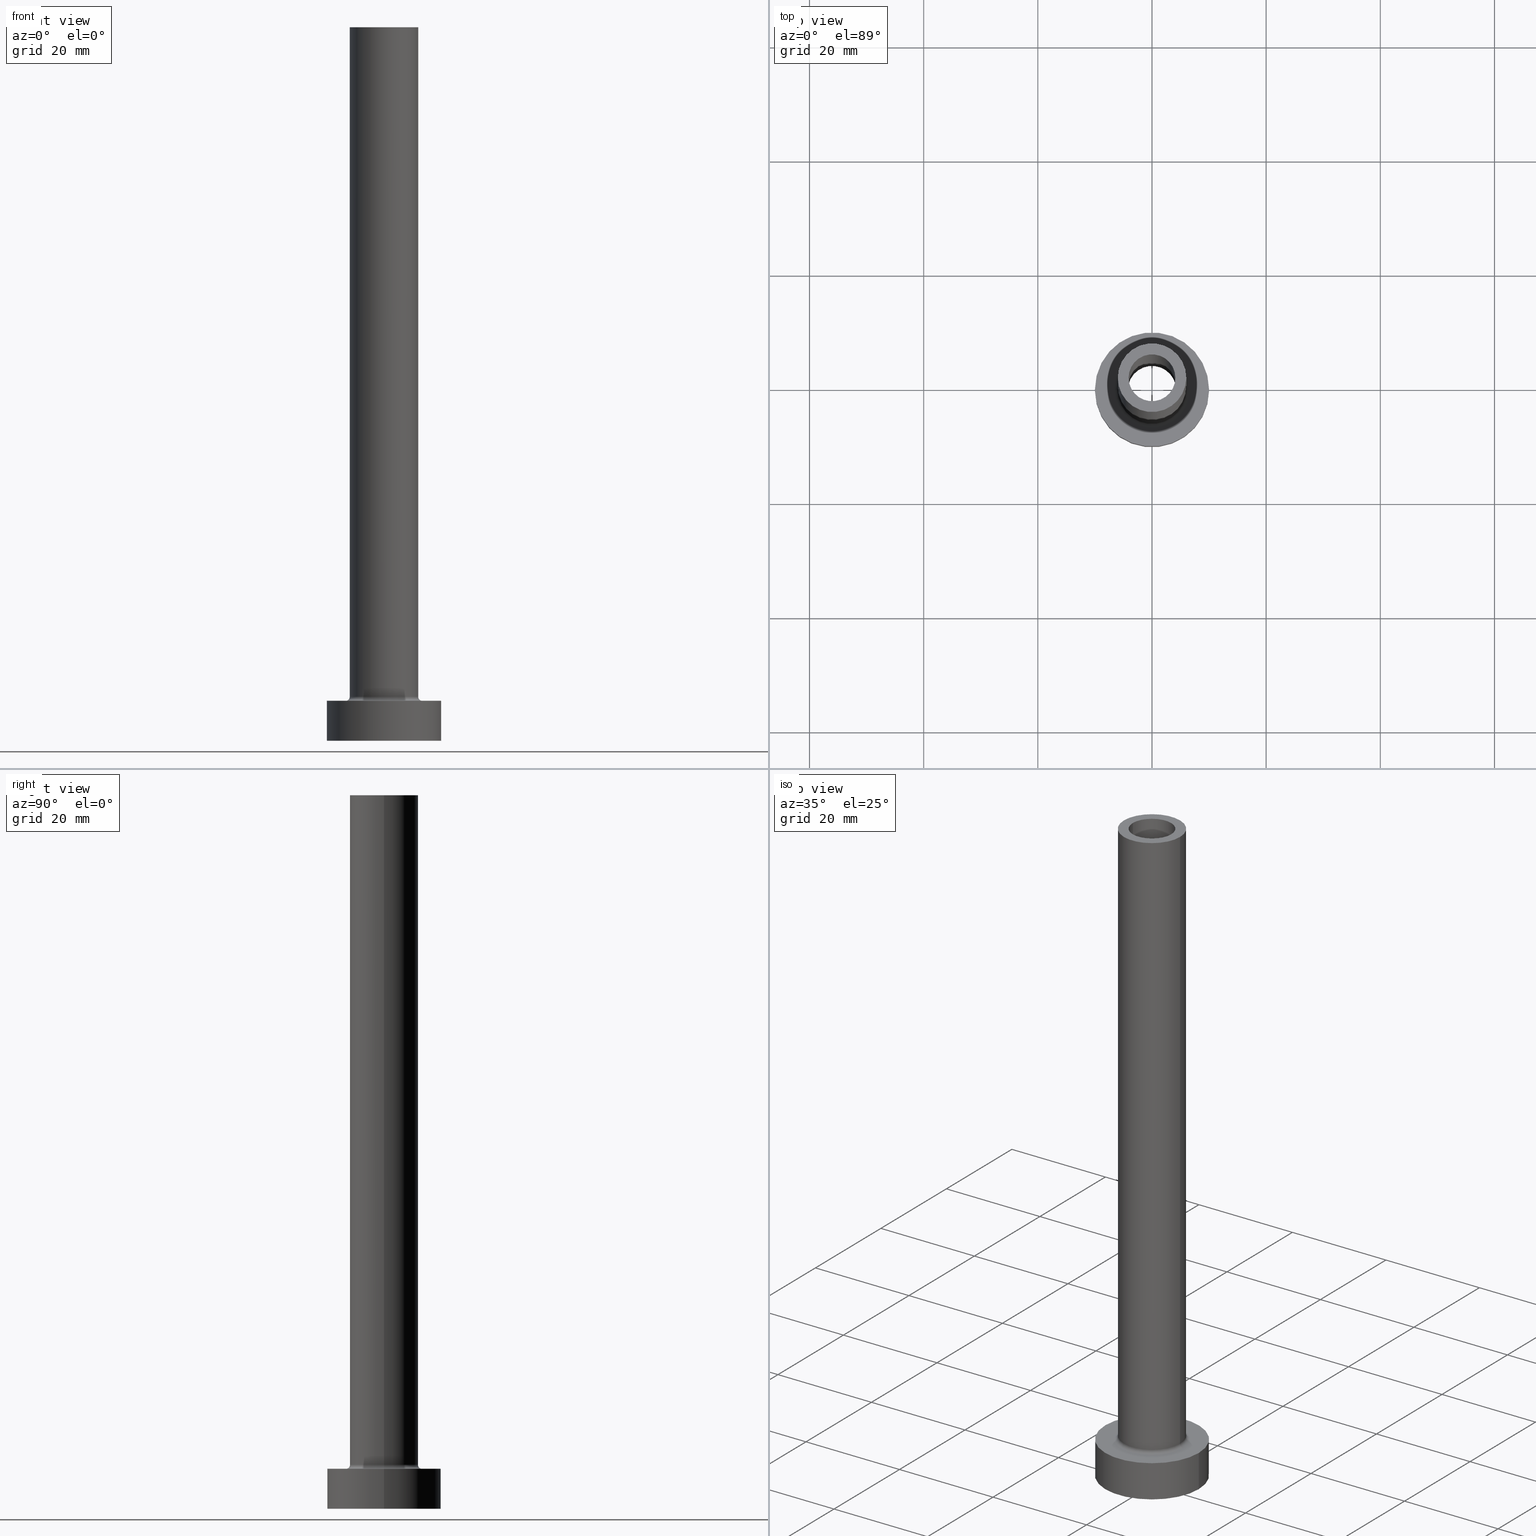
[diagram: canonical four-view strip — front | top / right | iso, engineering-drawing reading convention]
A machine part, canonical four-view strip (front | top / right | iso — engineering-drawing reading convention). The complete STEP part file that produces these views, byte-faithful:
ISO-10303-21;
HEADER;
FILE_DESCRIPTION (( 'STEP AP203' ),
    '1' );
FILE_NAME ('059e.STEP',
    '2023-02-13T07:46:19',
    ( '' ),
    ( '' ),
    'SwSTEP 2.0',
    'SolidWorks 2019',
    '' );
FILE_SCHEMA (( 'CONFIG_CONTROL_DESIGN' ));
ENDSEC;

DATA;
#1 = ORGANIZATION ( 'NEUR�EN�', 'NEUR�EN�', '' ) ;
#2 = EDGE_LOOP ( 'NONE', ( #382, #442, #266, #193 ) ) ;
#3 = DIRECTION ( 'NONE',  ( 0.000000000000000000, 0.000000000000000000, 1.000000000000000000 ) ) ;
#4 = DIRECTION ( 'NONE',  ( 1.000000000000000000, 0.000000000000000000, 0.000000000000000000 ) ) ;
#5 = DIRECTION ( 'NONE',  ( 1.000000000000000000, 0.000000000000000000, 0.000000000000000000 ) ) ;
#6 = DIRECTION ( 'NONE',  ( -1.000000000000000000, 0.000000000000000000, 0.000000000000000000 ) ) ;
#7 = CC_DESIGN_DATE_AND_TIME_ASSIGNMENT ( #313, #454, ( #122 ) ) ;
#8 = CIRCLE ( 'NONE', #142, 4.099999999999999645 ) ;
#9 = FACE_OUTER_BOUND ( 'NONE', #2, .T. ) ;
#10 = CARTESIAN_POINT ( 'NONE',  ( -10.00000000000000000, 0.000000000000000000, 7.000000000000000000 ) ) ;
#11 = EDGE_CURVE ( 'NONE', #228, #368, #233, .T. ) ;
#12 = DIRECTION ( 'NONE',  ( 1.000000000000000000, 0.000000000000000000, 0.000000000000000000 ) ) ;
#13 = EDGE_LOOP ( 'NONE', ( #403, #376, #415, #147 ) ) ;
#14 = DIRECTION ( 'NONE',  ( 1.000000000000000000, 0.000000000000000000, 0.000000000000000000 ) ) ;
#15 = CIRCLE ( 'NONE', #258, 6.000000000000000888 ) ;
#16 = EDGE_LOOP ( 'NONE', ( #373, #58, #302, #124 ) ) ;
#17 =( LENGTH_UNIT ( ) NAMED_UNIT ( * ) SI_UNIT ( .MILLI., .METRE. ) );
#18 = ORIENTED_EDGE ( 'NONE', *, *, #55, .F. ) ;
#19 = ADVANCED_FACE ( 'NONE', ( #378 ), #136, .T. ) ;
#20 = FACE_BOUND ( 'NONE', #334, .T. ) ;
#21 = EDGE_LOOP ( 'NONE', ( #102, #209 ) ) ;
#22 = PRODUCT_DEFINITION_FORMATION_WITH_SPECIFIED_SOURCE ( 'LIBOVOLN�', '', #259, .NOT_KNOWN. ) ;
#23 = ORIENTED_EDGE ( 'NONE', *, *, #381, .F. ) ;
#24 = CIRCLE ( 'NONE', #288, 6.700000000000001066 ) ;
#25 = APPROVAL_DATE_TIME ( #383, #43 ) ;
#26 = EDGE_CURVE ( 'NONE', #51, #365, #15, .T. ) ;
#27 = CARTESIAN_POINT ( 'NONE',  ( -4.099999999999999645, 0.000000000000000000, 80.00000000000000000 ) ) ;
#28 = MANIFOLD_SOLID_BREP ( 'Odebrat vysunut�m4', #99 ) ;
#29 = APPROVAL_ROLE ( '' ) ;
#30 = VERTEX_POINT ( 'NONE', #312 ) ;
#31 = COORDINATED_UNIVERSAL_TIME_OFFSET ( 1, 0, .AHEAD. ) ;
#32 = CC_DESIGN_APPROVAL ( #43, ( #22 ) ) ;
#33 = CARTESIAN_POINT ( 'NONE',  ( -4.099999999999999645, 0.000000000000000000, 125.0000000000000000 ) ) ;
#34 = CALENDAR_DATE ( 2023, 13, 2 ) ;
#35 = DIRECTION ( 'NONE',  ( 1.000000000000000000, 0.000000000000000000, 0.000000000000000000 ) ) ;
#36 = COORDINATED_UNIVERSAL_TIME_OFFSET ( 1, 0, .AHEAD. ) ;
#37 = ORIENTED_EDGE ( 'NONE', *, *, #26, .F. ) ;
#38 = SECURITY_CLASSIFICATION ( '', '', #62 ) ;
#39 = DIRECTION ( 'NONE',  ( -0.000000000000000000, -0.000000000000000000, -1.000000000000000000 ) ) ;
#40 = DIRECTION ( 'NONE',  ( -1.000000000000000000, 1.224646799147353454E-16, 0.000000000000000000 ) ) ;
#41 = AXIS2_PLACEMENT_3D ( 'NONE', #281, #67, #314 ) ;
#42 = DIRECTION ( 'NONE',  ( 0.000000000000000000, 0.000000000000000000, 1.000000000000000000 ) ) ;
#43 = APPROVAL ( #139, 'NEUR�EN�' ) ;
#44 = CARTESIAN_POINT ( 'NONE',  ( -6.700000000000001066, 8.205133554287267548E-16, 7.699999999999998401 ) ) ;
#45 = DIRECTION ( 'NONE',  ( 0.000000000000000000, 0.000000000000000000, 1.000000000000000000 ) ) ;
#46 = FACE_OUTER_BOUND ( 'NONE', #247, .T. ) ;
#47 = CC_DESIGN_PERSON_AND_ORGANIZATION_ASSIGNMENT ( #419, #351, ( #22 ) ) ;
#48 = LINE ( 'NONE', #223, #363 ) ;
#49 = VERTEX_POINT ( 'NONE', #284 ) ;
#50 = APPROVAL_STATUS ( 'not_yet_approved' ) ;
#51 = VERTEX_POINT ( 'NONE', #61 ) ;
#52 = VECTOR ( 'NONE', #370, 1000.000000000000000 ) ;
#53 =( NAMED_UNIT ( * ) PLANE_ANGLE_UNIT ( ) SI_UNIT ( $, .RADIAN. ) );
#54 = CIRCLE ( 'NONE', #432, 4.099999999999999645 ) ;
#55 = EDGE_CURVE ( 'NONE', #461, #30, #328, .T. ) ;
#56 = VERTEX_POINT ( 'NONE', #27 ) ;
#57 = FACE_OUTER_BOUND ( 'NONE', #236, .T. ) ;
#58 = ORIENTED_EDGE ( 'NONE', *, *, #129, .T. ) ;
#59 = ORIENTED_EDGE ( 'NONE', *, *, #227, .F. ) ;
#60 = EDGE_CURVE ( 'NONE', #245, #86, #54, .T. ) ;
#61 = CARTESIAN_POINT ( 'NONE',  ( 6.000000000000000888, 7.347880794884120722E-16, 125.0000000000000000 ) ) ;
#62 = SECURITY_CLASSIFICATION_LEVEL ( 'unclassified' ) ;
#63 = DIRECTION ( 'NONE',  ( -1.000000000000000000, 0.000000000000000000, 0.000000000000000000 ) ) ;
#64 = APPROVAL_ROLE ( '' ) ;
#65 = VERTEX_POINT ( 'NONE', #349 ) ;
#66 = AXIS2_PLACEMENT_3D ( 'NONE', #117, #262, #226 ) ;
#67 = DIRECTION ( 'NONE',  ( 0.000000000000000000, 0.000000000000000000, 1.000000000000000000 ) ) ;
#68 = DIRECTION ( 'NONE',  ( -0.000000000000000000, -0.000000000000000000, -1.000000000000000000 ) ) ;
#69 = UNCERTAINTY_MEASURE_WITH_UNIT (LENGTH_MEASURE( 1.000000000000000082E-05 ), #17, 'distance_accuracy_value', 'NONE');
#70 = CARTESIAN_POINT ( 'NONE',  ( 0.000000000000000000, 0.000000000000000000, 80.00000000000000000 ) ) ;
#71 = DIRECTION ( 'NONE',  ( 0.000000000000000000, 0.000000000000000000, 1.000000000000000000 ) ) ;
#72 = CC_DESIGN_PERSON_AND_ORGANIZATION_ASSIGNMENT ( #439, #264, ( #259 ) ) ;
#73 = AXIS2_PLACEMENT_3D ( 'NONE', #123, #85, #267 ) ;
#74 = DIRECTION ( 'NONE',  ( -1.000000000000000000, 0.000000000000000000, 0.000000000000000000 ) ) ;
#75 = CARTESIAN_POINT ( 'NONE',  ( 0.000000000000000000, 0.000000000000000000, 0.000000000000000000 ) ) ;
#76 = LINE ( 'NONE', #289, #152 ) ;
#77 = FACE_OUTER_BOUND ( 'NONE', #92, .T. ) ;
#78 = CC_DESIGN_DATE_AND_TIME_ASSIGNMENT ( #170, #311, ( #38 ) ) ;
#79 = DIRECTION ( 'NONE',  ( 1.000000000000000000, 0.000000000000000000, 0.000000000000000000 ) ) ;
#80 = LOCAL_TIME ( 8, 46, 19.00000000000000000, #31 ) ;
#81 = CARTESIAN_POINT ( 'NONE',  ( 0.000000000000000000, 0.000000000000000000, 80.00000000000000000 ) ) ;
#82 = VECTOR ( 'NONE', #140, 1000.000000000000000 ) ;
#83 = AXIS2_PLACEMENT_3D ( 'NONE', #345, #178, #413 ) ;
#84 = ORIENTED_EDGE ( 'NONE', *, *, #60, .T. ) ;
#85 = DIRECTION ( 'NONE',  ( 0.000000000000000000, 0.000000000000000000, 1.000000000000000000 ) ) ;
#86 = VERTEX_POINT ( 'NONE', #33 ) ;
#87 = CARTESIAN_POINT ( 'NONE',  ( -6.700000000000001066, 8.205133554287267548E-16, 6.999999999999999112 ) ) ;
#88 = EDGE_CURVE ( 'NONE', #49, #461, #355, .T. ) ;
#89 = ORIENTED_EDGE ( 'NONE', *, *, #11, .T. ) ;
#90 = CIRCLE ( 'NONE', #66, 0.7000000000000000666 ) ;
#91 = FACE_OUTER_BOUND ( 'NONE', #21, .T. ) ;
#92 = EDGE_LOOP ( 'NONE', ( #407, #230, #418, #239 ) ) ;
#93 = CARTESIAN_POINT ( 'NONE',  ( 0.000000000000000000, 0.000000000000000000, 0.000000000000000000 ) ) ;
#94 = ORIENTED_EDGE ( 'NONE', *, *, #431, .F. ) ;
#95 = EDGE_CURVE ( 'NONE', #398, #405, #320, .T. ) ;
#96 = PLANE ( 'NONE',  #105 ) ;
#97 = DIRECTION ( 'NONE',  ( 1.000000000000000000, 0.000000000000000000, 0.000000000000000000 ) ) ;
#98 = CIRCLE ( 'NONE', #438, 10.00000000000000000 ) ;
#99 = CLOSED_SHELL ( 'NONE', ( #387, #186, #356, #243, #213, #19, #144, #396, #138, #460, #316, #367, #208, #110 ) ) ;
#100 = VERTEX_POINT ( 'NONE', #251 ) ;
#101 = APPROVAL_STATUS ( 'not_yet_approved' ) ;
#102 = ORIENTED_EDGE ( 'NONE', *, *, #401, .T. ) ;
#103 = EDGE_CURVE ( 'NONE', #100, #56, #119, .T. ) ;
#104 = ORIENTED_EDGE ( 'NONE', *, *, #95, .T. ) ;
#105 = AXIS2_PLACEMENT_3D ( 'NONE', #375, #198, #156 ) ;
#106 = CARTESIAN_POINT ( 'NONE',  ( 10.00000000000000000, 1.224646799147353256E-15, 7.000000000000000000 ) ) ;
#107 = AXIS2_PLACEMENT_3D ( 'NONE', #116, #181, #6 ) ;
#108 = SHAPE_DEFINITION_REPRESENTATION ( #190, #248 ) ;
#109 = CYLINDRICAL_SURFACE ( 'NONE', #352, 4.250000000000000000 ) ;
#110 = ADVANCED_FACE ( 'NONE', ( #421 ), #411, .F. ) ;
#111 = FACE_BOUND ( 'NONE', #162, .T. ) ;
#112 = DIRECTION ( 'NONE',  ( -1.000000000000000000, 0.000000000000000000, 0.000000000000000000 ) ) ;
#113 = AXIS2_PLACEMENT_3D ( 'NONE', #297, #325, #12 ) ;
#114 = DIRECTION ( 'NONE',  ( 0.000000000000000000, 0.000000000000000000, 1.000000000000000000 ) ) ;
#115 = CYLINDRICAL_SURFACE ( 'NONE', #107, 6.000000000000000888 ) ;
#116 = CARTESIAN_POINT ( 'NONE',  ( 0.000000000000000000, 0.000000000000000000, 125.0000000000000000 ) ) ;
#117 = CARTESIAN_POINT ( 'NONE',  ( 6.700000000000001066, 0.000000000000000000, 7.699999999999998401 ) ) ;
#118 = DIRECTION ( 'NONE',  ( 1.000000000000000000, 0.000000000000000000, 0.000000000000000000 ) ) ;
#119 = CIRCLE ( 'NONE', #301, 4.099999999999999645 ) ;
#120 =( NAMED_UNIT ( * ) SI_UNIT ( $, .STERADIAN. ) SOLID_ANGLE_UNIT ( ) );
#121 = ORIENTED_EDGE ( 'NONE', *, *, #422, .F. ) ;
#122 = PRODUCT_DEFINITION ( 'NEZN�M�', '', #22, #423 ) ;
#123 = CARTESIAN_POINT ( 'NONE',  ( 0.000000000000000000, 0.000000000000000000, 0.000000000000000000 ) ) ;
#124 = ORIENTED_EDGE ( 'NONE', *, *, #436, .F. ) ;
#125 = ORIENTED_EDGE ( 'NONE', *, *, #173, .T. ) ;
#126 = AXIS2_PLACEMENT_3D ( 'NONE', #399, #329, #112 ) ;
#127 = CARTESIAN_POINT ( 'NONE',  ( -4.250000000000000000, 0.000000000000000000, 0.000000000000000000 ) ) ;
#128 = CIRCLE ( 'NONE', #424, 4.250000000000000000 ) ;
#129 = EDGE_CURVE ( 'NONE', #228, #459, #386, .T. ) ;
#130 = ORIENTED_EDGE ( 'NONE', *, *, #157, .T. ) ;
#131 = EDGE_LOOP ( 'NONE', ( #37, #165, #196, #121 ) ) ;
#132 = CALENDAR_DATE ( 2023, 13, 2 ) ;
#133 = ORIENTED_EDGE ( 'NONE', *, *, #129, .F. ) ;
#134 = CARTESIAN_POINT ( 'NONE',  ( 0.000000000000000000, 0.000000000000000000, 125.0000000000000000 ) ) ;
#135 = PERSON_AND_ORGANIZATION ( #163, #1 ) ;
#136 = CYLINDRICAL_SURFACE ( 'NONE', #159, 10.00000000000000000 ) ;
#137 = CIRCLE ( 'NONE', #199, 4.250000000000000000 ) ;
#138 = ADVANCED_FACE ( 'NONE', ( #214 ), #318, .T. ) ;
#139 = APPROVAL_STATUS ( 'not_yet_approved' ) ;
#140 = DIRECTION ( 'NONE',  ( 0.000000000000000000, 0.000000000000000000, -1.000000000000000000 ) ) ;
#141 = DIRECTION ( 'NONE',  ( 1.000000000000000000, 0.000000000000000000, 0.000000000000000000 ) ) ;
#142 = AXIS2_PLACEMENT_3D ( 'NONE', #81, #392, #79 ) ;
#143 = CARTESIAN_POINT ( 'NONE',  ( 0.000000000000000000, 0.000000000000000000, 7.000000000000000000 ) ) ;
#144 = ADVANCED_FACE ( 'NONE', ( #111, #321 ), #219, .T. ) ;
#145 = AXIS2_PLACEMENT_3D ( 'NONE', #277, #385, #35 ) ;
#146 = DIRECTION ( 'NONE',  ( 0.000000000000000000, 0.000000000000000000, -1.000000000000000000 ) ) ;
#147 = ORIENTED_EDGE ( 'NONE', *, *, #296, .T. ) ;
#148 = CARTESIAN_POINT ( 'NONE',  ( 0.000000000000000000, 0.000000000000000000, 125.0000000000000000 ) ) ;
#149 = DIRECTION ( 'NONE',  ( -0.000000000000000000, -0.000000000000000000, -1.000000000000000000 ) ) ;
#150 = CC_DESIGN_SECURITY_CLASSIFICATION ( #38, ( #22 ) ) ;
#151 = CARTESIAN_POINT ( 'NONE',  ( -6.000000000000000888, 0.000000000000000000, 125.0000000000000000 ) ) ;
#152 = VECTOR ( 'NONE', #146, 1000.000000000000000 ) ;
#153 = APPROVAL ( #50, 'NEUR�EN�' ) ;
#154 = FACE_OUTER_BOUND ( 'NONE', #131, .T. ) ;
#155 = DIRECTION ( 'NONE',  ( 0.000000000000000000, 0.000000000000000000, 1.000000000000000000 ) ) ;
#156 = DIRECTION ( 'NONE',  ( 1.000000000000000000, 0.000000000000000000, -0.000000000000000000 ) ) ;
#157 = EDGE_CURVE ( 'NONE', #245, #100, #76, .T. ) ;
#158 = ORIENTED_EDGE ( 'NONE', *, *, #88, .F. ) ;
#159 = AXIS2_PLACEMENT_3D ( 'NONE', #274, #353, #63 ) ;
#160 = LINE ( 'NONE', #201, #52 ) ;
#161 = VERTEX_POINT ( 'NONE', #180 ) ;
#162 = EDGE_LOOP ( 'NONE', ( #232, #104 ) ) ;
#163 = PERSON ( 'NEUR�EN�', 'NEUR�EN�', 'NEUR�EN�', ('NEUR�EN�'), ('NEUR�EN�'), ('NEUR�EN�') ) ;
#164 = CC_DESIGN_PERSON_AND_ORGANIZATION_ASSIGNMENT ( #135, #348, ( #22 ) ) ;
#165 = ORIENTED_EDGE ( 'NONE', *, *, #235, .T. ) ;
#166 = LOCAL_TIME ( 8, 46, 19.00000000000000000, #451 ) ;
#167 = APPLICATION_PROTOCOL_DEFINITION ( 'international standard', 'config_control_design', 1994, #416 ) ;
#168 = ORIENTED_EDGE ( 'NONE', *, *, #431, .T. ) ;
#169 = ORIENTED_EDGE ( 'NONE', *, *, #350, .T. ) ;
#170 = DATE_AND_TIME ( #132, #285 ) ;
#171 = CARTESIAN_POINT ( 'NONE',  ( -4.250000000000000000, 0.000000000000000000, 92.02081528017131973 ) ) ;
#172 = ORIENTED_EDGE ( 'NONE', *, *, #192, .T. ) ;
#173 = EDGE_CURVE ( 'NONE', #49, #300, #128, .T. ) ;
#174 = CALENDAR_DATE ( 2023, 13, 2 ) ;
#175 = VERTEX_POINT ( 'NONE', #253 ) ;
#176 = CARTESIAN_POINT ( 'NONE',  ( 0.000000000000000000, 0.000000000000000000, 80.00000000000000000 ) ) ;
#177 = DATE_AND_TIME ( #282, #80 ) ;
#178 = DIRECTION ( 'NONE',  ( 0.000000000000000000, 0.000000000000000000, -1.000000000000000000 ) ) ;
#179 = CIRCLE ( 'NONE', #278, 10.00000000000000000 ) ;
#180 = CARTESIAN_POINT ( 'NONE',  ( 6.000000000000000888, 7.347880794884120722E-16, 7.699999999999998401 ) ) ;
#181 = DIRECTION ( 'NONE',  ( -0.000000000000000000, -0.000000000000000000, -1.000000000000000000 ) ) ;
#182 = AXIS2_PLACEMENT_3D ( 'NONE', #44, #330, #40 ) ;
#183 = CARTESIAN_POINT ( 'NONE',  ( 0.000000000000000000, 0.000000000000000000, 7.000000000000000000 ) ) ;
#184 = FACE_OUTER_BOUND ( 'NONE', #197, .T. ) ;
#185 = DIRECTION ( 'NONE',  ( 1.000000000000000000, 0.000000000000000000, 0.000000000000000000 ) ) ;
#186 = ADVANCED_FACE ( 'NONE', ( #425 ), #109, .F. ) ;
#187 = VECTOR ( 'NONE', #406, 1000.000000000000000 ) ;
#188 = CYLINDRICAL_SURFACE ( 'NONE', #126, 4.250000000000000000 ) ;
#189 = AXIS2_PLACEMENT_3D ( 'NONE', #428, #114, #257 ) ;
#190 = PRODUCT_DEFINITION_SHAPE ( 'NONE', 'NONE',  #122 ) ;
#191 = DIRECTION ( 'NONE',  ( -0.000000000000000000, -0.000000000000000000, -1.000000000000000000 ) ) ;
#192 = EDGE_CURVE ( 'NONE', #300, #49, #137, .T. ) ;
#193 = ORIENTED_EDGE ( 'NONE', *, *, #374, .F. ) ;
#194 = CARTESIAN_POINT ( 'NONE',  ( 0.000000000000000000, 0.000000000000000000, 125.0000000000000000 ) ) ;
#195 = AXIS2_PLACEMENT_3D ( 'NONE', #291, #45, #185 ) ;
#196 = ORIENTED_EDGE ( 'NONE', *, *, #292, .T. ) ;
#197 = EDGE_LOOP ( 'NONE', ( #280, #130, #310, #238 ) ) ;
#198 = DIRECTION ( 'NONE',  ( 0.000000000000000000, 0.000000000000000000, 1.000000000000000000 ) ) ;
#199 = AXIS2_PLACEMENT_3D ( 'NONE', #70, #42, #5 ) ;
#200 = ORIENTED_EDGE ( 'NONE', *, *, #60, .F. ) ;
#201 = CARTESIAN_POINT ( 'NONE',  ( -4.099999999999999645, 0.000000000000000000, 125.0000000000000000 ) ) ;
#202 = ORIENTED_EDGE ( 'NONE', *, *, #157, .F. ) ;
#203 = DIRECTION ( 'NONE',  ( 1.000000000000000000, 0.000000000000000000, 0.000000000000000000 ) ) ;
#204 = ORIENTED_EDGE ( 'NONE', *, *, #256, .T. ) ;
#205 = CARTESIAN_POINT ( 'NONE',  ( 0.000000000000000000, 0.000000000000000000, 125.0000000000000000 ) ) ;
#206 = DIRECTION ( 'NONE',  ( 1.000000000000000000, 0.000000000000000000, 0.000000000000000000 ) ) ;
#207 = PERSON_AND_ORGANIZATION ( #163, #1 ) ;
#208 = ADVANCED_FACE ( 'NONE', ( #252, #216 ), #357, .F. ) ;
#209 = ORIENTED_EDGE ( 'NONE', *, *, #26, .T. ) ;
#210 = DATE_AND_TIME ( #174, #166 ) ;
#211 = DIRECTION ( 'NONE',  ( 1.000000000000000000, 0.000000000000000000, 0.000000000000000000 ) ) ;
#212 = EDGE_LOOP ( 'NONE', ( #133, #94, #336, #272 ) ) ;
#213 = ADVANCED_FACE ( 'NONE', ( #394 ), #221, .T. ) ;
#214 = FACE_OUTER_BOUND ( 'NONE', #13, .T. ) ;
#215 = PERSON_AND_ORGANIZATION_ROLE ( 'creator' ) ;
#216 = FACE_OUTER_BOUND ( 'NONE', #265, .T. ) ;
#217 = CARTESIAN_POINT ( 'NONE',  ( 10.00000000000000000, 1.224646799147353256E-15, 7.000000000000000000 ) ) ;
#218 = CIRCLE ( 'NONE', #319, 6.000000000000000888 ) ;
#219 = PLANE ( 'NONE',  #433 ) ;
#220 = DIRECTION ( 'NONE',  ( -0.000000000000000000, -0.000000000000000000, -1.000000000000000000 ) ) ;
#221 = CYLINDRICAL_SURFACE ( 'NONE', #307, 10.00000000000000000 ) ;
#222 = EDGE_CURVE ( 'NONE', #175, #398, #449, .T. ) ;
#223 = CARTESIAN_POINT ( 'NONE',  ( 4.250000000000000000, 5.204748896376250699E-16, 92.02081528017131973 ) ) ;
#224 = DIRECTION ( 'NONE',  ( 0.000000000000000000, 0.000000000000000000, 1.000000000000000000 ) ) ;
#225 = AXIS2_PLACEMENT_3D ( 'NONE', #194, #332, #299 ) ;
#226 = DIRECTION ( 'NONE',  ( 0.000000000000000000, 0.000000000000000000, -1.000000000000000000 ) ) ;
#227 = EDGE_CURVE ( 'NONE', #459, #65, #457, .T. ) ;
#228 = VERTEX_POINT ( 'NONE', #217 ) ;
#229 = PLANE ( 'NONE',  #73 ) ;
#230 = ORIENTED_EDGE ( 'NONE', *, *, #292, .F. ) ;
#231 = CARTESIAN_POINT ( 'NONE',  ( 10.00000000000000000, 1.224646799147353256E-15, 0.000000000000000000 ) ) ;
#232 = ORIENTED_EDGE ( 'NONE', *, *, #275, .T. ) ;
#233 = CIRCLE ( 'NONE', #41, 10.00000000000000000 ) ;
#234 = AXIS2_PLACEMENT_3D ( 'NONE', #261, #298, #4 ) ;
#235 = EDGE_CURVE ( 'NONE', #51, #161, #294, .T. ) ;
#236 = EDGE_LOOP ( 'NONE', ( #304, #59 ) ) ;
#237 = DIRECTION ( 'NONE',  ( -0.000000000000000000, -0.000000000000000000, -1.000000000000000000 ) ) ;
#238 = ORIENTED_EDGE ( 'NONE', *, *, #453, .F. ) ;
#239 = ORIENTED_EDGE ( 'NONE', *, *, #95, .F. ) ;
#240 = CARTESIAN_POINT ( 'NONE',  ( 6.700000000000001066, 0.000000000000000000, 6.999999999999999112 ) ) ;
#241 = EDGE_LOOP ( 'NONE', ( #168, #89 ) ) ;
#242 = LOCAL_TIME ( 8, 46, 19.00000000000000000, #36 ) ;
#243 = ADVANCED_FACE ( 'NONE', ( #154 ), #115, .T. ) ;
#244 = DIRECTION ( 'NONE',  ( 0.000000000000000000, 0.000000000000000000, 1.000000000000000000 ) ) ;
#245 = VERTEX_POINT ( 'NONE', #358 ) ;
#246 = APPROVAL_ROLE ( '' ) ;
#247 = EDGE_LOOP ( 'NONE', ( #409, #172, #445, #400 ) ) ;
#248 = ADVANCED_BREP_SHAPE_REPRESENTATION ( '059e', ( #28, #369 ), #391 ) ;
#249 = AXIS2_PLACEMENT_3D ( 'NONE', #260, #155, #118 ) ;
#250 = VECTOR ( 'NONE', #437, 1000.000000000000000 ) ;
#251 = CARTESIAN_POINT ( 'NONE',  ( 4.099999999999999645, 5.021051876504146399E-16, 80.00000000000000000 ) ) ;
#252 = FACE_BOUND ( 'NONE', #283, .T. ) ;
#253 = CARTESIAN_POINT ( 'NONE',  ( -6.000000000000000888, 0.000000000000000000, 7.699999999999998401 ) ) ;
#254 = DIRECTION ( 'NONE',  ( 1.000000000000000000, 0.000000000000000000, 0.000000000000000000 ) ) ;
#255 = AXIS2_PLACEMENT_3D ( 'NONE', #75, #220, #361 ) ;
#256 = EDGE_CURVE ( 'NONE', #300, #30, #48, .T. ) ;
#257 = DIRECTION ( 'NONE',  ( 1.000000000000000000, 0.000000000000000000, -0.000000000000000000 ) ) ;
#258 = AXIS2_PLACEMENT_3D ( 'NONE', #134, #244, #97 ) ;
#259 = PRODUCT ( '059e', '059e', '', ( #308 ) ) ;
#260 = CARTESIAN_POINT ( 'NONE',  ( 0.000000000000000000, 0.000000000000000000, 7.699999999999998401 ) ) ;
#261 = CARTESIAN_POINT ( 'NONE',  ( 0.000000000000000000, 0.000000000000000000, 125.0000000000000000 ) ) ;
#262 = DIRECTION ( 'NONE',  ( 0.000000000000000000, -1.000000000000000000, 0.000000000000000000 ) ) ;
#263 = CARTESIAN_POINT ( 'NONE',  ( 0.000000000000000000, 0.000000000000000000, 0.000000000000000000 ) ) ;
#264 = PERSON_AND_ORGANIZATION_ROLE ( 'design_owner' ) ;
#265 = EDGE_LOOP ( 'NONE', ( #448, #450 ) ) ;
#266 = ORIENTED_EDGE ( 'NONE', *, *, #275, .F. ) ;
#267 = DIRECTION ( 'NONE',  ( 1.000000000000000000, 0.000000000000000000, -0.000000000000000000 ) ) ;
#268 = EDGE_CURVE ( 'NONE', #86, #245, #342, .T. ) ;
#269 = APPROVAL_PERSON_ORGANIZATION ( #346, #303, #29 ) ;
#270 = ORIENTED_EDGE ( 'NONE', *, *, #381, .T. ) ;
#271 = DIRECTION ( 'NONE',  ( 0.000000000000000000, 0.000000000000000000, 1.000000000000000000 ) ) ;
#272 = ORIENTED_EDGE ( 'NONE', *, *, #322, .T. ) ;
#273 = CYLINDRICAL_SURFACE ( 'NONE', #225, 4.099999999999999645 ) ;
#274 = CARTESIAN_POINT ( 'NONE',  ( 0.000000000000000000, 0.000000000000000000, 7.000000000000000000 ) ) ;
#275 = EDGE_CURVE ( 'NONE', #405, #398, #24, .T. ) ;
#276 = PERSON_AND_ORGANIZATION ( #163, #1 ) ;
#277 = CARTESIAN_POINT ( 'NONE',  ( 0.000000000000000000, 0.000000000000000000, 7.000000000000000000 ) ) ;
#278 = AXIS2_PLACEMENT_3D ( 'NONE', #410, #343, #408 ) ;
#279 = COORDINATED_UNIVERSAL_TIME_OFFSET ( 1, 0, .AHEAD. ) ;
#280 = ORIENTED_EDGE ( 'NONE', *, *, #268, .T. ) ;
#281 = CARTESIAN_POINT ( 'NONE',  ( 0.000000000000000000, 0.000000000000000000, 7.000000000000000000 ) ) ;
#282 = CALENDAR_DATE ( 2023, 13, 2 ) ;
#283 = EDGE_LOOP ( 'NONE', ( #169, #306 ) ) ;
#284 = CARTESIAN_POINT ( 'NONE',  ( -4.250000000000000000, 0.000000000000000000, 80.00000000000000000 ) ) ;
#285 = LOCAL_TIME ( 8, 46, 19.00000000000000000, #388 ) ;
#286 = APPROVAL_DATE_TIME ( #210, #153 ) ;
#287 = AXIS2_PLACEMENT_3D ( 'NONE', #315, #379, #206 ) ;
#288 = AXIS2_PLACEMENT_3D ( 'NONE', #397, #149, #254 ) ;
#289 = CARTESIAN_POINT ( 'NONE',  ( 4.099999999999999645, 5.021051876504146399E-16, 125.0000000000000000 ) ) ;
#290 = DIRECTION ( 'NONE',  ( 1.000000000000000000, 0.000000000000000000, -0.000000000000000000 ) ) ;
#291 = CARTESIAN_POINT ( 'NONE',  ( 0.000000000000000000, 0.000000000000000000, 7.699999999999998401 ) ) ;
#292 = EDGE_CURVE ( 'NONE', #161, #175, #344, .T. ) ;
#293 = CARTESIAN_POINT ( 'NONE',  ( 0.000000000000000000, 0.000000000000000000, 80.00000000000000000 ) ) ;
#294 = LINE ( 'NONE', #326, #250 ) ;
#295 = CARTESIAN_POINT ( 'NONE',  ( 0.000000000000000000, 0.000000000000000000, 7.699999999999998401 ) ) ;
#296 = EDGE_CURVE ( 'NONE', #175, #161, #455, .T. ) ;
#297 = CARTESIAN_POINT ( 'NONE',  ( 0.000000000000000000, 0.000000000000000000, 7.699999999999998401 ) ) ;
#298 = DIRECTION ( 'NONE',  ( 0.000000000000000000, 0.000000000000000000, 1.000000000000000000 ) ) ;
#299 = DIRECTION ( 'NONE',  ( -1.000000000000000000, 0.000000000000000000, 0.000000000000000000 ) ) ;
#300 = VERTEX_POINT ( 'NONE', #395 ) ;
#301 = AXIS2_PLACEMENT_3D ( 'NONE', #176, #317, #141 ) ;
#302 = ORIENTED_EDGE ( 'NONE', *, *, #227, .T. ) ;
#303 = APPROVAL ( #101, 'NEUR�EN�' ) ;
#304 = ORIENTED_EDGE ( 'NONE', *, *, #322, .F. ) ;
#305 = AXIS2_PLACEMENT_3D ( 'NONE', #295, #427, #434 ) ;
#306 = ORIENTED_EDGE ( 'NONE', *, *, #103, .T. ) ;
#307 = AXIS2_PLACEMENT_3D ( 'NONE', #143, #191, #430 ) ;
#308 = MECHANICAL_CONTEXT ( 'NONE', #416, 'mechanical' ) ;
#309 = CC_DESIGN_PERSON_AND_ORGANIZATION_ASSIGNMENT ( #354, #215, ( #122 ) ) ;
#310 = ORIENTED_EDGE ( 'NONE', *, *, #350, .F. ) ;
#311 = DATE_TIME_ROLE ( 'classification_date' ) ;
#312 = CARTESIAN_POINT ( 'NONE',  ( 4.250000000000000000, 5.204748896376250699E-16, 0.000000000000000000 ) ) ;
#313 = DATE_AND_TIME ( #458, #446 ) ;
#314 = DIRECTION ( 'NONE',  ( 1.000000000000000000, 0.000000000000000000, 0.000000000000000000 ) ) ;
#315 = CARTESIAN_POINT ( 'NONE',  ( 0.000000000000000000, 0.000000000000000000, 0.000000000000000000 ) ) ;
#316 = ADVANCED_FACE ( 'NONE', ( #77 ), #377, .F. ) ;
#317 = DIRECTION ( 'NONE',  ( 0.000000000000000000, 0.000000000000000000, 1.000000000000000000 ) ) ;
#318 = CYLINDRICAL_SURFACE ( 'NONE', #393, 6.000000000000000888 ) ;
#319 = AXIS2_PLACEMENT_3D ( 'NONE', #205, #271, #14 ) ;
#320 = CIRCLE ( 'NONE', #145, 6.700000000000001066 ) ;
#321 = FACE_OUTER_BOUND ( 'NONE', #241, .T. ) ;
#322 = EDGE_CURVE ( 'NONE', #65, #459, #98, .T. ) ;
#323 = DIRECTION ( 'NONE',  ( 0.000000000000000000, 0.000000000000000000, -1.000000000000000000 ) ) ;
#324 = DIRECTION ( 'NONE',  ( 0.000000000000000000, 0.000000000000000000, 1.000000000000000000 ) ) ;
#325 = DIRECTION ( 'NONE',  ( 0.000000000000000000, 0.000000000000000000, 1.000000000000000000 ) ) ;
#326 = CARTESIAN_POINT ( 'NONE',  ( 6.000000000000000888, 7.347880794884120722E-16, 125.0000000000000000 ) ) ;
#327 = APPROVAL_PERSON_ORGANIZATION ( #276, #43, #246 ) ;
#328 = CIRCLE ( 'NONE', #287, 4.250000000000000000 ) ;
#329 = DIRECTION ( 'NONE',  ( 0.000000000000000000, 0.000000000000000000, -1.000000000000000000 ) ) ;
#330 = DIRECTION ( 'NONE',  ( 1.224646799147353207E-16, 1.000000000000000000, -0.000000000000000000 ) ) ;
#331 = ORIENTED_EDGE ( 'NONE', *, *, #103, .F. ) ;
#332 = DIRECTION ( 'NONE',  ( 0.000000000000000000, 0.000000000000000000, -1.000000000000000000 ) ) ;
#333 = VECTOR ( 'NONE', #237, 1000.000000000000000 ) ;
#334 = EDGE_LOOP ( 'NONE', ( #18, #23 ) ) ;
#335 = LINE ( 'NONE', #444, #187 ) ;
#336 = ORIENTED_EDGE ( 'NONE', *, *, #436, .T. ) ;
#337 = EDGE_LOOP ( 'NONE', ( #341, #200 ) ) ;
#338 = CC_DESIGN_PERSON_AND_ORGANIZATION_ASSIGNMENT ( #207, #380, ( #38 ) ) ;
#339 = DIRECTION ( 'NONE',  ( 0.000000000000000000, 0.000000000000000000, 1.000000000000000000 ) ) ;
#340 = CC_DESIGN_APPROVAL ( #303, ( #38 ) ) ;
#341 = ORIENTED_EDGE ( 'NONE', *, *, #268, .F. ) ;
#342 = CIRCLE ( 'NONE', #234, 4.099999999999999645 ) ;
#343 = DIRECTION ( 'NONE',  ( 0.000000000000000000, 0.000000000000000000, 1.000000000000000000 ) ) ;
#344 = CIRCLE ( 'NONE', #113, 6.000000000000000888 ) ;
#345 = CARTESIAN_POINT ( 'NONE',  ( 0.000000000000000000, 0.000000000000000000, 125.0000000000000000 ) ) ;
#346 = PERSON_AND_ORGANIZATION ( #163, #1 ) ;
#347 = CARTESIAN_POINT ( 'NONE',  ( 0.000000000000000000, 0.000000000000000000, 125.0000000000000000 ) ) ;
#348 = PERSON_AND_ORGANIZATION_ROLE ( 'design_supplier' ) ;
#349 = CARTESIAN_POINT ( 'NONE',  ( -10.00000000000000000, 0.000000000000000000, 0.000000000000000000 ) ) ;
#350 = EDGE_CURVE ( 'NONE', #56, #100, #8, .T. ) ;
#351 = PERSON_AND_ORGANIZATION_ROLE ( 'creator' ) ;
#352 = AXIS2_PLACEMENT_3D ( 'NONE', #390, #389, #74 ) ;
#353 = DIRECTION ( 'NONE',  ( -0.000000000000000000, -0.000000000000000000, -1.000000000000000000 ) ) ;
#354 = PERSON_AND_ORGANIZATION ( #163, #1 ) ;
#355 = LINE ( 'NONE', #171, #82 ) ;
#356 = ADVANCED_FACE ( 'NONE', ( #9 ), #412, .F. ) ;
#357 = PLANE ( 'NONE',  #189 ) ;
#358 = CARTESIAN_POINT ( 'NONE',  ( 4.099999999999999645, 5.021051876504146399E-16, 125.0000000000000000 ) ) ;
#359 = VECTOR ( 'NONE', #68, 1000.000000000000000 ) ;
#360 = DIRECTION ( 'NONE',  ( 1.000000000000000000, 0.000000000000000000, 0.000000000000000000 ) ) ;
#361 = DIRECTION ( 'NONE',  ( 1.000000000000000000, 0.000000000000000000, 0.000000000000000000 ) ) ;
#362 = DIRECTION ( 'NONE',  ( 1.000000000000000000, 0.000000000000000000, 0.000000000000000000 ) ) ;
#363 = VECTOR ( 'NONE', #323, 1000.000000000000000 ) ;
#364 = DIRECTION ( 'NONE',  ( 1.000000000000000000, 0.000000000000000000, 0.000000000000000000 ) ) ;
#365 = VERTEX_POINT ( 'NONE', #151 ) ;
#366 = PERSON_AND_ORGANIZATION ( #163, #1 ) ;
#367 = ADVANCED_FACE ( 'NONE', ( #46 ), #188, .F. ) ;
#368 = VERTEX_POINT ( 'NONE', #10 ) ;
#369 = AXIS2_PLACEMENT_3D ( 'NONE', #93, #339, #203 ) ;
#370 = DIRECTION ( 'NONE',  ( 0.000000000000000000, 0.000000000000000000, -1.000000000000000000 ) ) ;
#371 = ORIENTED_EDGE ( 'NONE', *, *, #453, .T. ) ;
#372 = CARTESIAN_POINT ( 'NONE',  ( -6.000000000000000888, 0.000000000000000000, 125.0000000000000000 ) ) ;
#373 = ORIENTED_EDGE ( 'NONE', *, *, #11, .F. ) ;
#374 = EDGE_CURVE ( 'NONE', #161, #405, #90, .T. ) ;
#375 = CARTESIAN_POINT ( 'NONE',  ( 0.000000000000000000, 0.000000000000000000, 125.0000000000000000 ) ) ;
#376 = ORIENTED_EDGE ( 'NONE', *, *, #401, .F. ) ;
#377 = TOROIDAL_SURFACE ( 'NONE', #195, 6.700000000000001066, 0.6999999999999999556 ) ;
#378 = FACE_OUTER_BOUND ( 'NONE', #212, .T. ) ;
#379 = DIRECTION ( 'NONE',  ( -0.000000000000000000, -0.000000000000000000, -1.000000000000000000 ) ) ;
#380 = PERSON_AND_ORGANIZATION_ROLE ( 'classification_officer' ) ;
#381 = EDGE_CURVE ( 'NONE', #30, #461, #384, .T. ) ;
#382 = ORIENTED_EDGE ( 'NONE', *, *, #296, .F. ) ;
#383 = DATE_AND_TIME ( #34, #242 ) ;
#384 = CIRCLE ( 'NONE', #255, 4.250000000000000000 ) ;
#385 = DIRECTION ( 'NONE',  ( -0.000000000000000000, -0.000000000000000000, -1.000000000000000000 ) ) ;
#386 = LINE ( 'NONE', #106, #359 ) ;
#387 = ADVANCED_FACE ( 'NONE', ( #184 ), #273, .F. ) ;
#388 = COORDINATED_UNIVERSAL_TIME_OFFSET ( 1, 0, .AHEAD. ) ;
#389 = DIRECTION ( 'NONE',  ( 0.000000000000000000, 0.000000000000000000, -1.000000000000000000 ) ) ;
#390 = CARTESIAN_POINT ( 'NONE',  ( 0.000000000000000000, 0.000000000000000000, 92.02081528017131973 ) ) ;
#391 =( GEOMETRIC_REPRESENTATION_CONTEXT ( 3 ) GLOBAL_UNCERTAINTY_ASSIGNED_CONTEXT ( ( #69 ) ) GLOBAL_UNIT_ASSIGNED_CONTEXT ( ( #17, #53, #120 ) ) REPRESENTATION_CONTEXT ( 'NONE', 'WORKASPACE' ) );
#392 = DIRECTION ( 'NONE',  ( 0.000000000000000000, 0.000000000000000000, 1.000000000000000000 ) ) ;
#393 = AXIS2_PLACEMENT_3D ( 'NONE', #148, #39, #426 ) ;
#394 = FACE_OUTER_BOUND ( 'NONE', #16, .T. ) ;
#395 = CARTESIAN_POINT ( 'NONE',  ( 4.250000000000000000, 5.204748896376250699E-16, 80.00000000000000000 ) ) ;
#396 = ADVANCED_FACE ( 'NONE', ( #20, #57 ), #229, .F. ) ;
#397 = CARTESIAN_POINT ( 'NONE',  ( 0.000000000000000000, 0.000000000000000000, 7.000000000000000000 ) ) ;
#398 = VERTEX_POINT ( 'NONE', #87 ) ;
#399 = CARTESIAN_POINT ( 'NONE',  ( 0.000000000000000000, 0.000000000000000000, 92.02081528017131973 ) ) ;
#400 = ORIENTED_EDGE ( 'NONE', *, *, #55, .T. ) ;
#401 = EDGE_CURVE ( 'NONE', #365, #51, #218, .T. ) ;
#402 = APPLICATION_PROTOCOL_DEFINITION ( 'international standard', 'config_control_design', 1994, #443 ) ;
#403 = ORIENTED_EDGE ( 'NONE', *, *, #235, .F. ) ;
#404 = LINE ( 'NONE', #372, #333 ) ;
#405 = VERTEX_POINT ( 'NONE', #240 ) ;
#406 = DIRECTION ( 'NONE',  ( -0.000000000000000000, -0.000000000000000000, -1.000000000000000000 ) ) ;
#407 = ORIENTED_EDGE ( 'NONE', *, *, #222, .F. ) ;
#408 = DIRECTION ( 'NONE',  ( 1.000000000000000000, 0.000000000000000000, 0.000000000000000000 ) ) ;
#409 = ORIENTED_EDGE ( 'NONE', *, *, #256, .F. ) ;
#410 = CARTESIAN_POINT ( 'NONE',  ( 0.000000000000000000, 0.000000000000000000, 7.000000000000000000 ) ) ;
#411 = CYLINDRICAL_SURFACE ( 'NONE', #83, 4.099999999999999645 ) ;
#412 = TOROIDAL_SURFACE ( 'NONE', #305, 6.700000000000001066, 0.6999999999999999556 ) ;
#413 = DIRECTION ( 'NONE',  ( -1.000000000000000000, 0.000000000000000000, 0.000000000000000000 ) ) ;
#414 = PRODUCT_RELATED_PRODUCT_CATEGORY ( 'detail', '', ( #259 ) ) ;
#415 = ORIENTED_EDGE ( 'NONE', *, *, #422, .T. ) ;
#416 = APPLICATION_CONTEXT ( 'configuration controlled 3d designs of mechanical parts and assemblies' ) ;
#417 = APPROVAL_DATE_TIME ( #177, #303 ) ;
#418 = ORIENTED_EDGE ( 'NONE', *, *, #374, .T. ) ;
#419 = PERSON_AND_ORGANIZATION ( #163, #1 ) ;
#420 = CC_DESIGN_APPROVAL ( #153, ( #122 ) ) ;
#421 = FACE_OUTER_BOUND ( 'NONE', #452, .T. ) ;
#422 = EDGE_CURVE ( 'NONE', #365, #175, #404, .T. ) ;
#423 = DESIGN_CONTEXT ( 'detailed design', #443, 'design' ) ;
#424 = AXIS2_PLACEMENT_3D ( 'NONE', #293, #324, #360 ) ;
#425 = FACE_OUTER_BOUND ( 'NONE', #441, .T. ) ;
#426 = DIRECTION ( 'NONE',  ( -1.000000000000000000, 0.000000000000000000, 0.000000000000000000 ) ) ;
#427 = DIRECTION ( 'NONE',  ( 0.000000000000000000, 0.000000000000000000, 1.000000000000000000 ) ) ;
#428 = CARTESIAN_POINT ( 'NONE',  ( 0.000000000000000000, 0.000000000000000000, 80.00000000000000000 ) ) ;
#429 = APPROVAL_PERSON_ORGANIZATION ( #366, #153, #64 ) ;
#430 = DIRECTION ( 'NONE',  ( -1.000000000000000000, 0.000000000000000000, 0.000000000000000000 ) ) ;
#431 = EDGE_CURVE ( 'NONE', #368, #228, #179, .T. ) ;
#432 = AXIS2_PLACEMENT_3D ( 'NONE', #347, #456, #211 ) ;
#433 = AXIS2_PLACEMENT_3D ( 'NONE', #183, #3, #290 ) ;
#434 = DIRECTION ( 'NONE',  ( 1.000000000000000000, 0.000000000000000000, 0.000000000000000000 ) ) ;
#435 = CARTESIAN_POINT ( 'NONE',  ( 0.000000000000000000, 0.000000000000000000, 0.000000000000000000 ) ) ;
#436 = EDGE_CURVE ( 'NONE', #368, #65, #335, .T. ) ;
#437 = DIRECTION ( 'NONE',  ( -0.000000000000000000, -0.000000000000000000, -1.000000000000000000 ) ) ;
#438 = AXIS2_PLACEMENT_3D ( 'NONE', #435, #224, #362 ) ;
#439 = PERSON_AND_ORGANIZATION ( #163, #1 ) ;
#440 = AXIS2_PLACEMENT_3D ( 'NONE', #263, #71, #364 ) ;
#441 = EDGE_LOOP ( 'NONE', ( #125, #204, #270, #158 ) ) ;
#442 = ORIENTED_EDGE ( 'NONE', *, *, #222, .T. ) ;
#443 = APPLICATION_CONTEXT ( 'configuration controlled 3d designs of mechanical parts and assemblies' ) ;
#444 = CARTESIAN_POINT ( 'NONE',  ( -10.00000000000000000, 0.000000000000000000, 7.000000000000000000 ) ) ;
#445 = ORIENTED_EDGE ( 'NONE', *, *, #88, .T. ) ;
#446 = LOCAL_TIME ( 8, 46, 19.00000000000000000, #279 ) ;
#447 = FACE_BOUND ( 'NONE', #337, .T. ) ;
#448 = ORIENTED_EDGE ( 'NONE', *, *, #173, .F. ) ;
#449 = CIRCLE ( 'NONE', #182, 0.7000000000000000666 ) ;
#450 = ORIENTED_EDGE ( 'NONE', *, *, #192, .F. ) ;
#451 = COORDINATED_UNIVERSAL_TIME_OFFSET ( 1, 0, .AHEAD. ) ;
#452 = EDGE_LOOP ( 'NONE', ( #202, #84, #371, #331 ) ) ;
#453 = EDGE_CURVE ( 'NONE', #86, #56, #160, .T. ) ;
#454 = DATE_TIME_ROLE ( 'creation_date' ) ;
#455 = CIRCLE ( 'NONE', #249, 6.000000000000000888 ) ;
#456 = DIRECTION ( 'NONE',  ( 0.000000000000000000, 0.000000000000000000, 1.000000000000000000 ) ) ;
#457 = CIRCLE ( 'NONE', #440, 10.00000000000000000 ) ;
#458 = CALENDAR_DATE ( 2023, 13, 2 ) ;
#459 = VERTEX_POINT ( 'NONE', #231 ) ;
#460 = ADVANCED_FACE ( 'NONE', ( #447, #91 ), #96, .T. ) ;
#461 = VERTEX_POINT ( 'NONE', #127 ) ;
ENDSEC;
END-ISO-10303-21;
